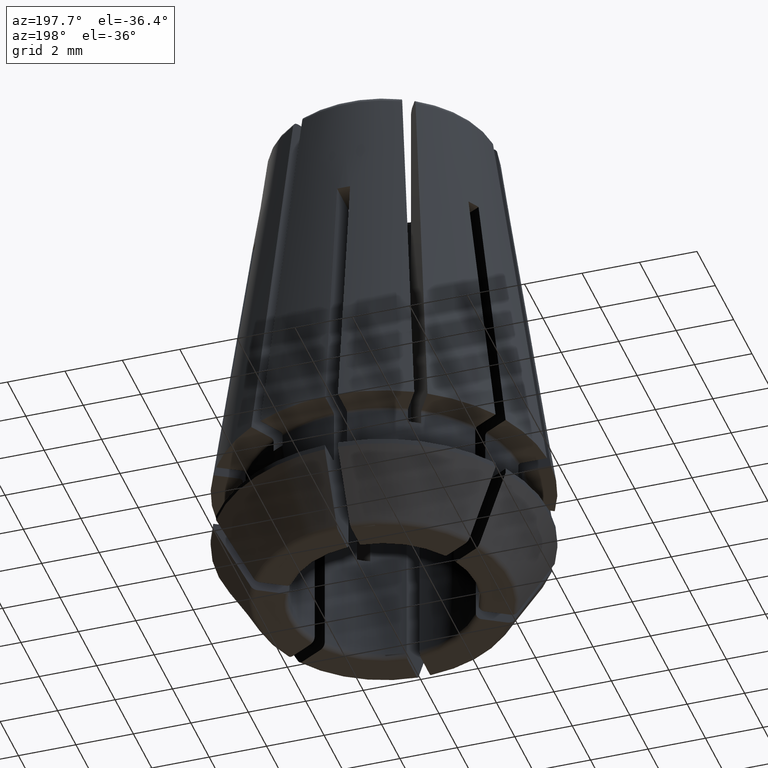
[diagram: clean part render]
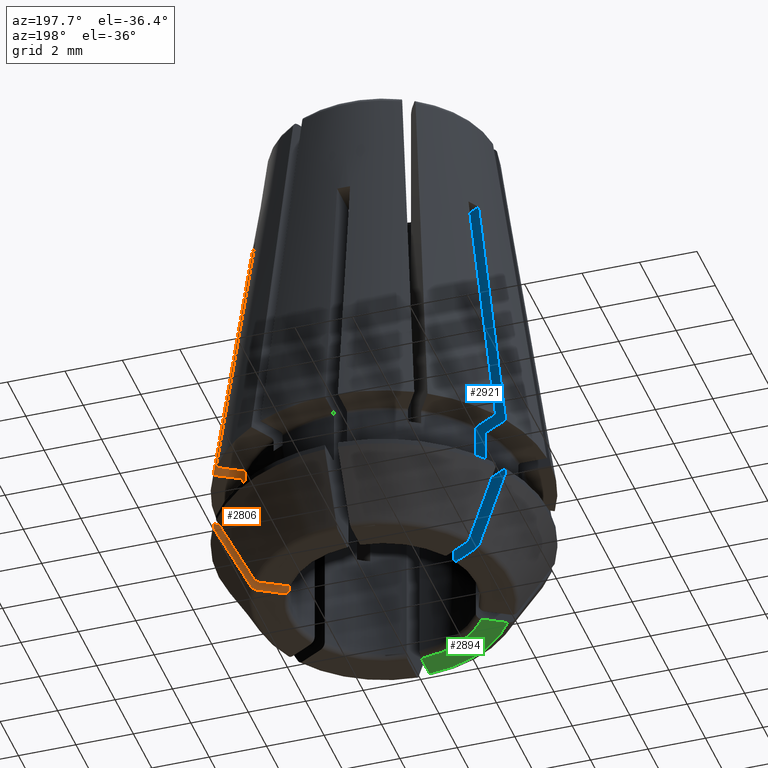
[diagram: same view with three faces highlighted in distinct colors, each labeled with its STEP entity id]
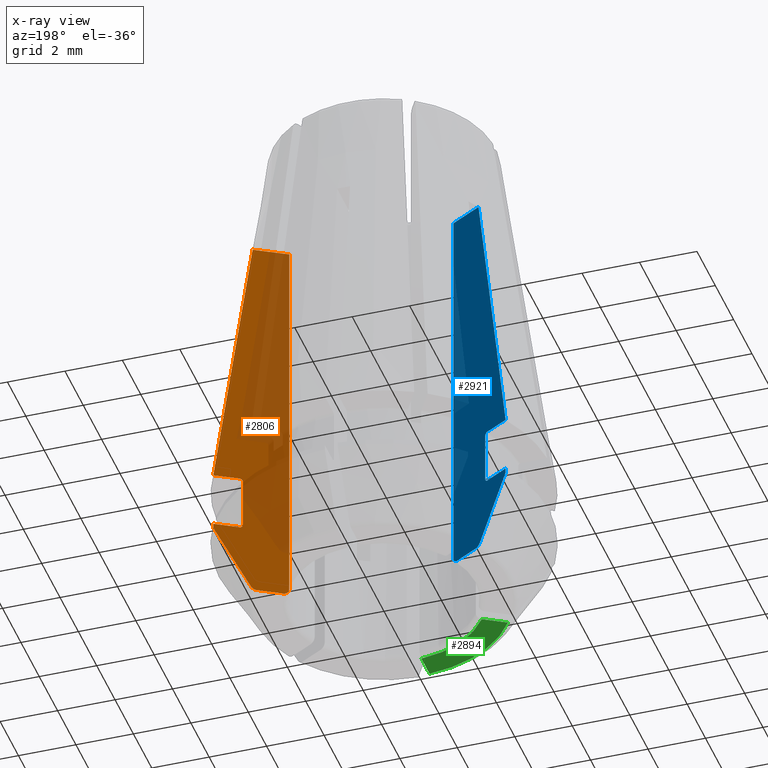
[diagram: x-ray of the same camera — body ghosted, the three highlighted faces saturated]
A machine part, auxiliary view with three faces highlighted in distinct colors.
The next image is the same camera in x-ray (body ghosted, the three faces saturated) — at least one of them is partly hidden behind the body in this view.
Their STEP definitions:

[orange] entity #2806 — the highlighted planar face has unit normal (-0.5, 0.866, 0).
#79=LINE('',#4377,#247);
#80=LINE('',#4384,#248);
#81=LINE('',#4385,#249);
#82=LINE('',#4387,#250);
#83=LINE('',#4396,#251);
#84=LINE('',#4397,#252);
#85=LINE('',#4401,#253);
#247=VECTOR('',#3402,1000.);
#248=VECTOR('',#3403,1000.);
#249=VECTOR('',#3404,1000.);
#250=VECTOR('',#3405,1000.);
#251=VECTOR('',#3408,1000.);
#252=VECTOR('',#3409,1000.);
#253=VECTOR('',#3412,1000.);
#410=PLANE('',#3015);
#510=CIRCLE('',#3016,11643.0881426401);
#511=CIRCLE('',#3017,25.);
#715=ORIENTED_EDGE('',*,*,#1622,.T.);
#716=ORIENTED_EDGE('',*,*,#1623,.T.);
#717=ORIENTED_EDGE('',*,*,#1624,.T.);
#718=ORIENTED_EDGE('',*,*,#1625,.F.);
#719=ORIENTED_EDGE('',*,*,#1539,.T.);
#720=ORIENTED_EDGE('',*,*,#1626,.T.);
#721=ORIENTED_EDGE('',*,*,#1627,.F.);
#722=ORIENTED_EDGE('',*,*,#1628,.T.);
#723=ORIENTED_EDGE('',*,*,#1629,.T.);
#724=ORIENTED_EDGE('',*,*,#1630,.T.);
#725=ORIENTED_EDGE('',*,*,#1544,.F.);
#726=ORIENTED_EDGE('',*,*,#1631,.T.);
#727=ORIENTED_EDGE('',*,*,#1632,.T.);
#728=ORIENTED_EDGE('',*,*,#1633,.T.);
#1539=EDGE_CURVE('',#1995,#1996,#2295,.T.);
#1544=EDGE_CURVE('',#2000,#2001,#2297,.T.);
#1622=EDGE_CURVE('',#2073,#2074,#2329,.T.);
#1623=EDGE_CURVE('',#2074,#2075,#79,.T.);
#1624=EDGE_CURVE('',#2075,#2076,#2330,.T.);
#1625=EDGE_CURVE('',#1995,#2076,#80,.T.);
#1626=EDGE_CURVE('',#1996,#2077,#81,.T.);
#1627=EDGE_CURVE('',#2078,#2077,#82,.T.);
#1628=EDGE_CURVE('',#2078,#2079,#510,.T.);
#1629=EDGE_CURVE('',#2079,#2080,#2331,.T.);
#1630=EDGE_CURVE('',#2080,#2001,#83,.T.);
#1631=EDGE_CURVE('',#2000,#2081,#84,.T.);
#1632=EDGE_CURVE('',#2081,#2082,#511,.T.);
#1633=EDGE_CURVE('',#2082,#2073,#85,.T.);
#1995=VERTEX_POINT('',#4070);
#1996=VERTEX_POINT('',#4071);
#2000=VERTEX_POINT('',#4083);
#2001=VERTEX_POINT('',#4088);
#2073=VERTEX_POINT('',#4375);
#2074=VERTEX_POINT('',#4376);
#2075=VERTEX_POINT('',#4378);
#2076=VERTEX_POINT('',#4383);
#2077=VERTEX_POINT('',#4386);
#2078=VERTEX_POINT('',#4388);
#2079=VERTEX_POINT('',#4390);
#2080=VERTEX_POINT('',#4395);
#2081=VERTEX_POINT('',#4398);
#2082=VERTEX_POINT('',#4400);
#2295=B_SPLINE_CURVE_WITH_KNOTS('',3,(#4066,#4067,#4068,#4069),
 .UNSPECIFIED.,.F.,.F.,(4,4),(2.16840434497101E-19,0.000156301568180376),
 .UNSPECIFIED.);
#2297=B_SPLINE_CURVE_WITH_KNOTS('',3,(#4084,#4085,#4086,#4087),
 .UNSPECIFIED.,.F.,.F.,(4,4),(0.,0.000312798520369641),.UNSPECIFIED.);
#2329=B_SPLINE_CURVE_WITH_KNOTS('',3,(#4368,#4369,#4370,#4371,#4372,#4373,
#4374),.UNSPECIFIED.,.F.,.F.,(4,3,4),(2.01970607867407E-7,0.00775094489359804,
0.00959374956587994),.UNSPECIFIED.);
#2330=B_SPLINE_CURVE_WITH_KNOTS('',3,(#4379,#4380,#4381,#4382),
 .UNSPECIFIED.,.F.,.F.,(4,4),(5.99205920847932E-17,0.000156301684380014),
 .UNSPECIFIED.);
#2331=B_SPLINE_CURVE_WITH_KNOTS('',3,(#4391,#4392,#4393,#4394),
 .UNSPECIFIED.,.F.,.F.,(4,4),(1.30104260698261E-18,0.000260998560704442),
 .UNSPECIFIED.);
#2448=EDGE_LOOP('',(#715,#716,#717,#718,#719,#720,#721,#722,#723,#724,#725,
#726,#727,#728));
#2606=FACE_BOUND('',#2448,.T.);
#2806=ADVANCED_FACE('',(#2606),#410,.T.);
#3015=AXIS2_PLACEMENT_3D('',#4367,#3400,#3401);
#3016=AXIS2_PLACEMENT_3D('',#4389,#3406,#3407);
#3017=AXIS2_PLACEMENT_3D('',#4399,#3410,#3411);
#3400=DIRECTION('',(-0.5,0.866025403784439,0.));
#3401=DIRECTION('',(0.866025403784439,0.5,0.));
#3402=DIRECTION('',(-0.866025403784439,-0.5,0.));
#3403=DIRECTION('',(0.,0.,1.));
#3404=DIRECTION('',(0.866025403784439,0.5,0.));
#3405=DIRECTION('',(0.,0.,1.));
#3406=DIRECTION('',(-0.499999999981019,0.866025403795397,-1.25805746009711E-11));
#3407=DIRECTION('',(0.749862725990641,0.432933446676783,-0.500274447596962));
#3408=DIRECTION('',(-0.866025403784439,-0.5,0.));
#3409=DIRECTION('',(0.,0.,1.));
#3410=DIRECTION('',(-0.5,0.866025403784439,0.));
#3411=DIRECTION('',(0.,0.,-1.));
#3412=DIRECTION('',(0.866025403784439,0.5,0.));
#4066=CARTESIAN_POINT('',(4.22150307252258,2.1774783141704,-1.9));
#4067=CARTESIAN_POINT('',(4.22150307252258,2.1774783141704,-1.95285100947387));
#4068=CARTESIAN_POINT('',(4.26243202373104,2.20110865516825,-2.00000000000044));
#4069=CARTESIAN_POINT('',(4.3082009247561,2.22753334249558,-2.0000000000005));
#4070=CARTESIAN_POINT('',(4.22150307252258,2.17747831417041,-1.9));
#4071=CARTESIAN_POINT('',(4.30820092475615,2.22753334249562,-2.00000000000025));
#4083=CARTESIAN_POINT('',(2.8552176303805,1.38865304635981,-4.3));
#4084=CARTESIAN_POINT('',(2.8552176303805,1.3886530463598,-4.3));
#4085=CARTESIAN_POINT('',(2.8552176303805,1.3886530463598,-4.40576900420716));
#4086=CARTESIAN_POINT('',(2.93724074703725,1.43600911484135,-4.50000000000106));
#4087=CARTESIAN_POINT('',(3.02883331428354,1.48889010819676,-4.50000000000106));
#4088=CARTESIAN_POINT('',(3.02883331428364,1.48889010819682,-4.50000000000053));
#4367=CARTESIAN_POINT('',(19.0135044375954,10.7176442841485,-7.14864859380487));
#4368=CARTESIAN_POINT('',(3.93091414398843,2.00970671805768,9.5));
#4369=CARTESIAN_POINT('',(4.24270387143508,2.18971860112957,6.94162677884326));
#4370=CARTESIAN_POINT('',(4.55440010231293,2.3696765039323,4.38323836467076));
#4371=CARTESIAN_POINT('',(4.8660489428369,2.54960704590145,1.82484225554555));
#4372=CARTESIAN_POINT('',(4.94014609008559,2.59238705381166,1.21656194588804));
#4373=CARTESIAN_POINT('',(5.01424039312911,2.63516541961924,0.608281174271129));
#4374=CARTESIAN_POINT('',(5.08833221682565,2.67794235397519,6.11859562438662E-16));
#4375=CARTESIAN_POINT('',(3.93091414398843,2.0097067180577,9.5));
#4376=CARTESIAN_POINT('',(5.08833221682564,2.6779423539752,0.));
#4377=CARTESIAN_POINT('',(4.25244473891685,2.19534249359232,1.0842021724855E-16));
#4378=CARTESIAN_POINT('',(4.30820092475614,2.22753334249562,-1.99937162042745E-18));
#4379=CARTESIAN_POINT('',(4.3082009247561,2.22753334249558,-3.99874324091147E-18));
#4380=CARTESIAN_POINT('',(4.26243114159221,2.20110814586516,-6.4014239384048E-14));
#4381=CARTESIAN_POINT('',(4.22150307252224,2.1774783141702,-4.71479777663309E-02));
#4382=CARTESIAN_POINT('',(4.2215030725222,2.17747831417018,-9.99999999999028E-02));
#4383=CARTESIAN_POINT('',(4.22150307252258,2.17747831417041,-0.100000000000003));
#4384=CARTESIAN_POINT('',(4.22150307252258,2.17747831417041,60.));
#4385=CARTESIAN_POINT('',(4.2464101615138,2.19185842870422,-2.));
#4386=CARTESIAN_POINT('',(5.08833221682564,2.6779423539752,-2.));
#4387=CARTESIAN_POINT('',(5.08833221682564,2.6779423539752,60.));
#4388=CARTESIAN_POINT('',(5.08833221682564,2.6779423539752,-2.17320508075687));
#4389=CARTESIAN_POINT('',(-8725.62948137256,-5038.00433720077,5822.56628380124));
#4390=CARTESIAN_POINT('',(3.98635106143357,2.04171323726768,-4.375));
#4391=CARTESIAN_POINT('',(3.98635106143357,2.04171323726768,-4.375));
#4392=CARTESIAN_POINT('',(3.94809994045362,2.0196289422731,-4.45140564544217));
#4393=CARTESIAN_POINT('',(3.87502932321261,1.97744160173915,-4.5));
#4394=CARTESIAN_POINT('',(3.79860194739889,1.93331623573964,-4.5));
#4395=CARTESIAN_POINT('',(3.79860194739889,1.93331623573965,-4.5));
#4396=CARTESIAN_POINT('',(0.112499999999998,-0.194855715851496,-4.5));
#4397=CARTESIAN_POINT('',(2.8552176303805,1.38865304635981,60.));
#4398=CARTESIAN_POINT('',(2.8552176303805,1.38865304635981,9.49105362531695));
#4399=CARTESIAN_POINT('',(19.0135044375954,10.7176442841485,-7.14864859380487));
#4400=CARTESIAN_POINT('',(2.8621306570156,1.3926442841485,9.5));
#4401=CARTESIAN_POINT('',(2.8621306570156,1.3926442841485,9.5));

[blue] entity #2921 — the highlighted planar face has unit normal (-0.5, -0.866, 0).
#129=LINE('',#4660,#297);
#164=LINE('',#4919,#332);
#183=LINE('',#5196,#351);
#202=LINE('',#5281,#370);
#215=LINE('',#5390,#383);
#217=LINE('',#5395,#385);
#224=LINE('',#5418,#392);
#297=VECTOR('',#3544,1000.);
#332=VECTOR('',#3685,1000.);
#351=VECTOR('',#3814,1000.);
#370=VECTOR('',#3877,1000.);
#383=VECTOR('',#3970,1000.);
#385=VECTOR('',#3976,1000.);
#392=VECTOR('',#4003,1000.);
#458=PLANE('',#3243);
#534=CIRCLE('',#3066,25.);
#616=CIRCLE('',#3230,11643.0883596688);
#1283=ORIENTED_EDGE('',*,*,#1594,.T.);
#1284=ORIENTED_EDGE('',*,*,#1912,.F.);
#1285=ORIENTED_EDGE('',*,*,#1915,.F.);
#1286=ORIENTED_EDGE('',*,*,#1952,.F.);
#1287=ORIENTED_EDGE('',*,*,#1957,.T.);
#1288=ORIENTED_EDGE('',*,*,#1954,.F.);
#1289=ORIENTED_EDGE('',*,*,#1589,.F.);
#1290=ORIENTED_EDGE('',*,*,#1803,.T.);
#1291=ORIENTED_EDGE('',*,*,#1875,.F.);
#1292=ORIENTED_EDGE('',*,*,#1878,.F.);
#1293=ORIENTED_EDGE('',*,*,#1869,.F.);
#1294=ORIENTED_EDGE('',*,*,#1717,.F.);
#1295=ORIENTED_EDGE('',*,*,#1721,.F.);
#1296=ORIENTED_EDGE('',*,*,#1969,.F.);
#1589=EDGE_CURVE('',#2041,#2042,#2314,.T.);
#1594=EDGE_CURVE('',#2043,#2046,#2316,.T.);
#1717=EDGE_CURVE('',#2146,#2147,#129,.T.);
#1721=EDGE_CURVE('',#2149,#2146,#534,.T.);
#1803=EDGE_CURVE('',#2041,#2209,#164,.T.);
#1869=EDGE_CURVE('',#2147,#2242,#2399,.T.);
#1875=EDGE_CURVE('',#2244,#2209,#2401,.T.);
#1878=EDGE_CURVE('',#2242,#2244,#183,.T.);
#1912=EDGE_CURVE('',#2260,#2046,#202,.T.);
#1915=EDGE_CURVE('',#2262,#2260,#2411,.T.);
#1952=EDGE_CURVE('',#2283,#2262,#616,.T.);
#1954=EDGE_CURVE('',#2042,#2285,#215,.T.);
#1957=EDGE_CURVE('',#2283,#2285,#217,.T.);
#1969=EDGE_CURVE('',#2043,#2149,#224,.T.);
#2041=VERTEX_POINT('',#4232);
#2042=VERTEX_POINT('',#4237);
#2043=VERTEX_POINT('',#4241);
#2046=VERTEX_POINT('',#4249);
#2146=VERTEX_POINT('',#4659);
#2147=VERTEX_POINT('',#4661);
#2149=VERTEX_POINT('',#4672);
#2209=VERTEX_POINT('',#4918);
#2242=VERTEX_POINT('',#5157);
#2244=VERTEX_POINT('',#5184);
#2260=VERTEX_POINT('',#5280);
#2262=VERTEX_POINT('',#5289);
#2283=VERTEX_POINT('',#5385);
#2285=VERTEX_POINT('',#5391);
#2314=B_SPLINE_CURVE_WITH_KNOTS('',3,(#4233,#4234,#4235,#4236),
 .UNSPECIFIED.,.F.,.F.,(4,4),(4.33680868994202E-19,0.000156301568180436),
 .UNSPECIFIED.);
#2316=B_SPLINE_CURVE_WITH_KNOTS('',3,(#4250,#4251,#4252,#4253),
 .UNSPECIFIED.,.F.,.F.,(4,4),(0.,0.000312798520369469),.UNSPECIFIED.);
#2399=B_SPLINE_CURVE_WITH_KNOTS('',3,(#5150,#5151,#5152,#5153,#5154,#5155,
#5156),.UNSPECIFIED.,.F.,.F.,(4,3,4),(2.01970607867407E-7,0.00775094489359804,
0.00959374956587994),.UNSPECIFIED.);
#2401=B_SPLINE_CURVE_WITH_KNOTS('',3,(#5185,#5186,#5187,#5188),
 .UNSPECIFIED.,.F.,.F.,(4,4),(5.12696824567265E-18,0.000156301684380104),
 .UNSPECIFIED.);
#2411=B_SPLINE_CURVE_WITH_KNOTS('',3,(#5290,#5291,#5292,#5293),
 .UNSPECIFIED.,.F.,.F.,(4,4),(1.95374073812504E-16,0.000260998560704445),
 .UNSPECIFIED.);
#2563=EDGE_LOOP('',(#1283,#1284,#1285,#1286,#1287,#1288,#1289,#1290,#1291,
#1292,#1293,#1294,#1295,#1296));
#2721=FACE_BOUND('',#2563,.T.);
#2921=ADVANCED_FACE('',(#2721),#458,.F.);
#3066=AXIS2_PLACEMENT_3D('',#4671,#3553,#3554);
#3230=AXIS2_PLACEMENT_3D('',#5386,#3965,#3966);
#3243=AXIS2_PLACEMENT_3D('',#5417,#4001,#4002);
#3544=DIRECTION('',(-0.866025403784439,0.5,0.));
#3553=DIRECTION('',(-0.5,-0.866025403784439,0.));
#3554=DIRECTION('',(0.,0.,-1.));
#3685=DIRECTION('',(0.,0.,1.));
#3814=DIRECTION('',(0.866025403784439,-0.5,0.));
#3877=DIRECTION('',(0.866025403784439,-0.5,0.));
#3965=DIRECTION('',(-0.500000000016841,-0.866025403774715,-1.11827329784133E-11));
#3966=DIRECTION('',(-0.749862725965858,0.432933446717558,-0.500274447598824));
#3970=DIRECTION('',(-0.866025403784439,0.5,0.));
#3976=DIRECTION('',(0.,0.,1.));
#4001=DIRECTION('',(-0.5,-0.866025403784439,0.));
#4002=DIRECTION('',(-0.866025403784439,0.5,0.));
#4003=DIRECTION('',(0.,0.,1.));
#4232=CARTESIAN_POINT('',(-4.22150307252258,2.17747831417041,-1.9));
#4233=CARTESIAN_POINT('',(-4.22150307252258,2.1774783141704,-1.9));
#4234=CARTESIAN_POINT('',(-4.22150307252258,2.1774783141704,-1.95285100947389));
#4235=CARTESIAN_POINT('',(-4.26243202373113,2.2011086551683,-2.0000000000005));
#4236=CARTESIAN_POINT('',(-4.30820092475621,2.22753334249565,-2.0000000000005));
#4237=CARTESIAN_POINT('',(-4.3082009247562,2.22753334249565,-2.00000000000025));
#4241=CARTESIAN_POINT('',(-2.8552176303805,1.38865304635981,-4.3));
#4249=CARTESIAN_POINT('',(-3.02883331428354,1.48889010819677,-4.5));
#4250=CARTESIAN_POINT('',(-2.8552176303805,1.3886530463598,-4.3));
#4251=CARTESIAN_POINT('',(-2.8552176303805,1.3886530463598,-4.4057690042071));
#4252=CARTESIAN_POINT('',(-2.9372407470371,1.43600911484126,-4.50000000000094));
#4253=CARTESIAN_POINT('',(-3.02883331428334,1.48889010819664,-4.50000000000106));
#4659=CARTESIAN_POINT('',(-2.86213065701559,1.3926442841485,9.5));
#4660=CARTESIAN_POINT('',(-2.86213065701559,1.3926442841485,9.5));
#4661=CARTESIAN_POINT('',(-3.93091414398843,2.0097067180577,9.5));
#4671=CARTESIAN_POINT('',(-19.0135044375954,10.7176442841485,-7.14864859380487));
#4672=CARTESIAN_POINT('',(-2.8552176303805,1.38865304635981,9.49105362531696));
#4918=CARTESIAN_POINT('',(-4.22150307252239,2.17747831417029,-9.99999999999525E-02));
#4919=CARTESIAN_POINT('',(-4.22150307252258,2.17747831417041,60.));
#5150=CARTESIAN_POINT('',(-3.93091414398842,2.0097067180577,9.5));
#5151=CARTESIAN_POINT('',(-4.24270387143507,2.18971860112959,6.94162677884326));
#5152=CARTESIAN_POINT('',(-4.55440010231293,2.36967650393229,4.38323836467076));
#5153=CARTESIAN_POINT('',(-4.8660489428369,2.54960704590144,1.82484225554555));
#5154=CARTESIAN_POINT('',(-4.94014609008559,2.59238705381165,1.21656194588803));
#5155=CARTESIAN_POINT('',(-5.0142403931291,2.63516541961926,0.608281174271129));
#5156=CARTESIAN_POINT('',(-5.08833221682564,2.67794235397521,3.18276357900372E-16));
#5157=CARTESIAN_POINT('',(-5.08833221682564,2.6779423539752,0.));
#5184=CARTESIAN_POINT('',(-4.3082009247562,2.22753334249564,5.4210108624275E-17));
#5185=CARTESIAN_POINT('',(-4.3082009247562,2.22753334249564,-1.59466999395263E-28));
#5186=CARTESIAN_POINT('',(-4.26243114159226,2.20110814586519,-3.46653324135169E-15));
#5187=CARTESIAN_POINT('',(-4.22150307252224,2.1774783141702,-4.71479777662808E-02));
#5188=CARTESIAN_POINT('',(-4.2215030725222,2.17747831417018,-9.99999999999019E-02));
#5196=CARTESIAN_POINT('',(4.02744473891685,-2.58505392529532,1.0842021724855E-16));
#5280=CARTESIAN_POINT('',(-3.79860194739889,1.93331623573964,-4.5));
#5281=CARTESIAN_POINT('',(-0.1125,-0.1948557158515,-4.5));
#5289=CARTESIAN_POINT('',(-3.98635106143354,2.04171323726767,-4.37500000000023));
#5290=CARTESIAN_POINT('',(-3.98635106143357,2.04171323726768,-4.375));
#5291=CARTESIAN_POINT('',(-3.94809994045365,2.01962894227311,-4.45140564544212));
#5292=CARTESIAN_POINT('',(-3.87502932321255,1.97744160173911,-4.5));
#5293=CARTESIAN_POINT('',(-3.79860194739889,1.93331623573964,-4.5));
#5385=CARTESIAN_POINT('',(-5.08833221682564,2.6779423539752,-2.17320508075687));
#5386=CARTESIAN_POINT('',(8725.62964382577,-5038.00443163452,5822.56639239686));
#5390=CARTESIAN_POINT('',(4.02141016151379,-2.58156986040722,-2.));
#5391=CARTESIAN_POINT('',(-5.08833221682564,2.6779423539752,-2.));
#5395=CARTESIAN_POINT('',(-5.08833221682564,2.6779423539752,60.));
#5417=CARTESIAN_POINT('',(-19.0135044375954,10.7176442841485,-7.14864859380487));
#5418=CARTESIAN_POINT('',(-2.8552176303805,1.38865304635981,60.));

[green] entity #2894 — the highlighted planar face has unit normal (0, 0, 1).
#199=LINE('',#5264,#367);
#200=LINE('',#5268,#368);
#367=VECTOR('',#3862,1000.);
#368=VECTOR('',#3867,1000.);
#448=PLANE('',#3186);
#489=CIRCLE('',#2984,3.375);
#593=CIRCLE('',#3187,4.26228675972853);
#1175=ORIENTED_EDGE('',*,*,#1905,.F.);
#1176=ORIENTED_EDGE('',*,*,#1906,.F.);
#1177=ORIENTED_EDGE('',*,*,#1907,.T.);
#1178=ORIENTED_EDGE('',*,*,#1578,.T.);
#1578=EDGE_CURVE('',#2032,#2031,#489,.T.);
#1905=EDGE_CURVE('',#2256,#2031,#199,.T.);
#1906=EDGE_CURVE('',#2257,#2256,#593,.T.);
#1907=EDGE_CURVE('',#2257,#2032,#200,.T.);
#2031=VERTEX_POINT('',#4196);
#2032=VERTEX_POINT('',#4198);
#2256=VERTEX_POINT('',#5263);
#2257=VERTEX_POINT('',#5267);
#2536=EDGE_LOOP('',(#1175,#1176,#1177,#1178));
#2694=FACE_BOUND('',#2536,.T.);
#2894=ADVANCED_FACE('',(#2694),#448,.F.);
#2984=AXIS2_PLACEMENT_3D('',#4197,#3334,#3335);
#3186=AXIS2_PLACEMENT_3D('',#5265,#3863,#3864);
#3187=AXIS2_PLACEMENT_3D('',#5266,#3865,#3866);
#3334=DIRECTION('',(0.,0.,1.));
#3335=DIRECTION('',(1.,0.,0.));
#3862=DIRECTION('',(-1.22464679914735E-16,1.,0.));
#3863=DIRECTION('',(0.,0.,1.));
#3864=DIRECTION('',(1.,0.,0.));
#3865=DIRECTION('',(0.,0.,1.));
#3866=DIRECTION('',(1.,0.,0.));
#3867=DIRECTION('',(0.866025403784438,0.5,0.));
#4196=CARTESIAN_POINT('',(-0.224999999999992,-3.36749164809643,-4.50000000000053));
#4197=CARTESIAN_POINT('',(0.,0.,-4.5));
#4198=CARTESIAN_POINT('',(-2.80383331428354,-1.87860153989977,-4.5));
#5263=CARTESIAN_POINT('',(-0.224999999999992,-4.2563439031823,-4.5));
#5264=CARTESIAN_POINT('',(-0.224999999999992,-2.75545529808145E-17,-4.5));
#5265=CARTESIAN_POINT('',(0.,0.,-4.5));
#5266=CARTESIAN_POINT('',(0.,0.,-4.5));
#5267=CARTESIAN_POINT('',(-3.57360194739889,-2.32302766744264,-4.5));
#5268=CARTESIAN_POINT('',(0.112500000000003,-0.194855715851504,-4.5));